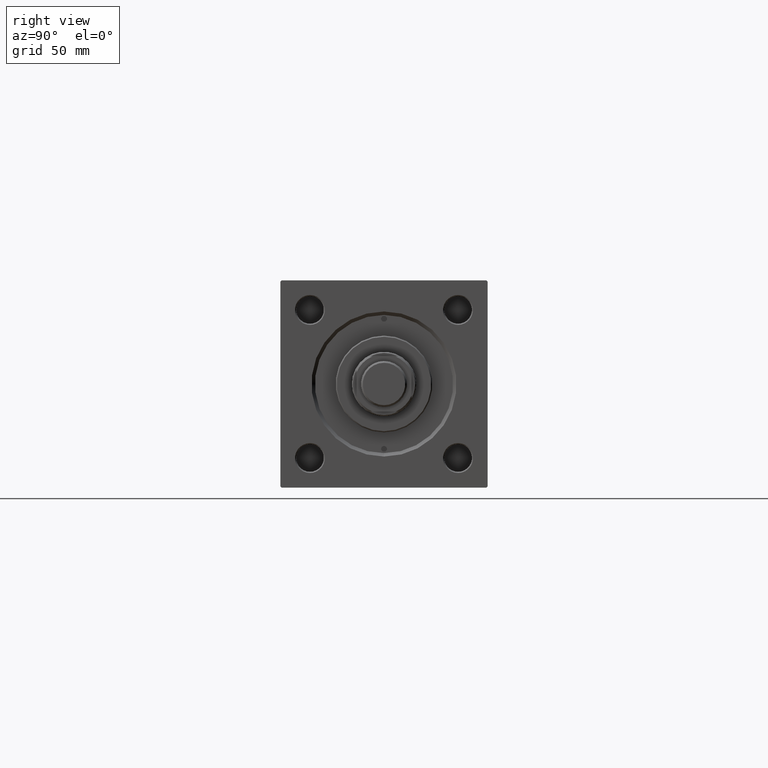
[diagram: clean part render]
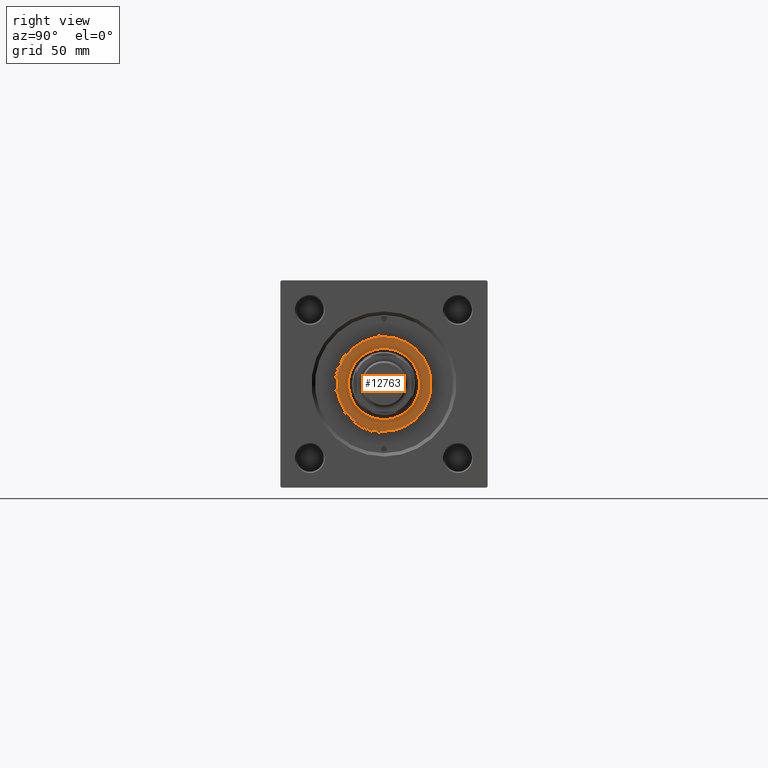
[diagram: same view with one face highlighted and labeled with its STEP entity id]
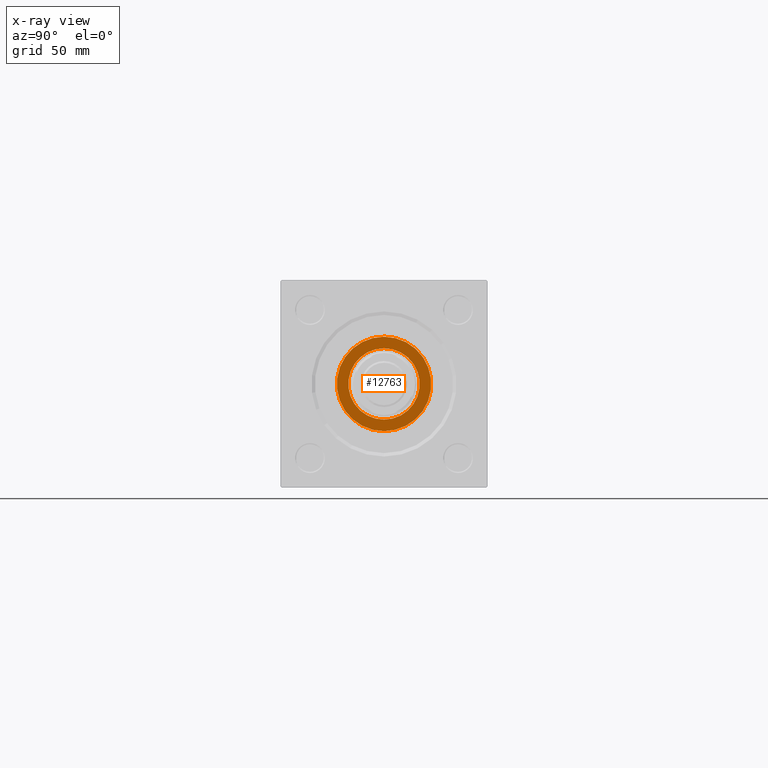
[diagram: x-ray of the same camera — body ghosted, the highlighted face saturated]
A machine part, right view. The second image highlights one B-rep face of the part: STEP entity #12763.
The next image is the same camera in x-ray: the body ghosted, the highlighted face saturated — about 0% of this face is hidden behind the body in this view.
In plain terms, the highlighted planar face has unit normal (1, 0, 0).
Its self-contained STEP definition (entity closure, byte-faithful):
#806 = AXIS2_PLACEMENT_3D ( 'NONE', #24468, #838, #24230 ) ;
#838 = DIRECTION ( 'NONE',  ( 0.000000000000000000, 0.000000000000000000, 1.000000000000000000 ) ) ;
#2974 = ORIENTED_EDGE ( 'NONE', *, *, #43455, .F. ) ;
#4514 = FACE_OUTER_BOUND ( 'NONE', #14091, .T. ) ;
#8205 = VERTEX_POINT ( 'NONE', #47352 ) ;
#8614 = CARTESIAN_POINT ( 'NONE',  ( 0.000000000000000000, 0.000000000000000000, 39.69999999999999574 ) ) ;
#8754 = VERTEX_POINT ( 'NONE', #11270 ) ;
#11270 = CARTESIAN_POINT ( 'NONE',  ( -15.50000000000000000, 1.898202538678397557E-15, 39.69999999999999574 ) ) ;
#11291 = VERTEX_POINT ( 'NONE', #47770 ) ;
#11477 = CARTESIAN_POINT ( 'NONE',  ( 0.000000000000000000, 0.000000000000000000, 39.69999999999999574 ) ) ;
#12763 = ADVANCED_FACE ( 'NONE', ( #20436, #4514 ), #28145, .T. ) ;
#12988 = DIRECTION ( 'NONE',  ( 0.000000000000000000, 0.000000000000000000, 1.000000000000000000 ) ) ;
#13827 = ORIENTED_EDGE ( 'NONE', *, *, #39071, .T. ) ;
#14091 = EDGE_LOOP ( 'NONE', ( #13827, #15278 ) ) ;
#14985 = CIRCLE ( 'NONE', #37969, 20.50000000000000355 ) ;
#15278 = ORIENTED_EDGE ( 'NONE', *, *, #28859, .T. ) ;
#16776 = AXIS2_PLACEMENT_3D ( 'NONE', #11477, #35112, #42559 ) ;
#20436 = FACE_BOUND ( 'NONE', #28013, .T. ) ;
#20960 = CARTESIAN_POINT ( 'NONE',  ( 0.000000000000000000, 0.000000000000000000, 39.69999999999999574 ) ) ;
#23317 = CIRCLE ( 'NONE', #16776, 15.50000000000000000 ) ;
#24230 = DIRECTION ( 'NONE',  ( 1.000000000000000000, 0.000000000000000000, 0.000000000000000000 ) ) ;
#24468 = CARTESIAN_POINT ( 'NONE',  ( 0.000000000000000000, 0.000000000000000000, 39.69999999999999574 ) ) ;
#24830 = AXIS2_PLACEMENT_3D ( 'NONE', #8614, #12988, #44316 ) ;
#28013 = EDGE_LOOP ( 'NONE', ( #46918, #2974 ) ) ;
#28145 = PLANE ( 'NONE',  #24830 ) ;
#28147 = DIRECTION ( 'NONE',  ( 1.000000000000000000, 0.000000000000000000, 0.000000000000000000 ) ) ;
#28306 = CARTESIAN_POINT ( 'NONE',  ( 20.50000000000000355, 2.541142108230758269E-15, 39.69999999999999574 ) ) ;
#28859 = EDGE_CURVE ( 'NONE', #37963, #11291, #50880, .T. ) ;
#34780 = EDGE_CURVE ( 'NONE', #8205, #8754, #46014, .T. ) ;
#35112 = DIRECTION ( 'NONE',  ( 0.000000000000000000, 0.000000000000000000, 1.000000000000000000 ) ) ;
#37963 = VERTEX_POINT ( 'NONE', #28306 ) ;
#37969 = AXIS2_PLACEMENT_3D ( 'NONE', #39021, #42131, #50612 ) ;
#39021 = CARTESIAN_POINT ( 'NONE',  ( 0.000000000000000000, 0.000000000000000000, 39.69999999999999574 ) ) ;
#39071 = EDGE_CURVE ( 'NONE', #11291, #37963, #14985, .T. ) ;
#42131 = DIRECTION ( 'NONE',  ( 0.000000000000000000, 0.000000000000000000, 1.000000000000000000 ) ) ;
#42559 = DIRECTION ( 'NONE',  ( 1.000000000000000000, 0.000000000000000000, 0.000000000000000000 ) ) ;
#43455 = EDGE_CURVE ( 'NONE', #8754, #8205, #23317, .T. ) ;
#44316 = DIRECTION ( 'NONE',  ( 1.000000000000000000, 0.000000000000000000, -0.000000000000000000 ) ) ;
#45285 = DIRECTION ( 'NONE',  ( 0.000000000000000000, 0.000000000000000000, 1.000000000000000000 ) ) ;
#46014 = CIRCLE ( 'NONE', #47647, 15.50000000000000000 ) ;
#46918 = ORIENTED_EDGE ( 'NONE', *, *, #34780, .F. ) ;
#47352 = CARTESIAN_POINT ( 'NONE',  ( 15.50000000000000000, 0.000000000000000000, 39.69999999999999574 ) ) ;
#47647 = AXIS2_PLACEMENT_3D ( 'NONE', #20960, #45285, #28147 ) ;
#47770 = CARTESIAN_POINT ( 'NONE',  ( -20.50000000000000355, 0.000000000000000000, 39.69999999999999574 ) ) ;
#50612 = DIRECTION ( 'NONE',  ( 1.000000000000000000, 0.000000000000000000, 0.000000000000000000 ) ) ;
#50880 = CIRCLE ( 'NONE', #806, 20.50000000000000355 ) ;